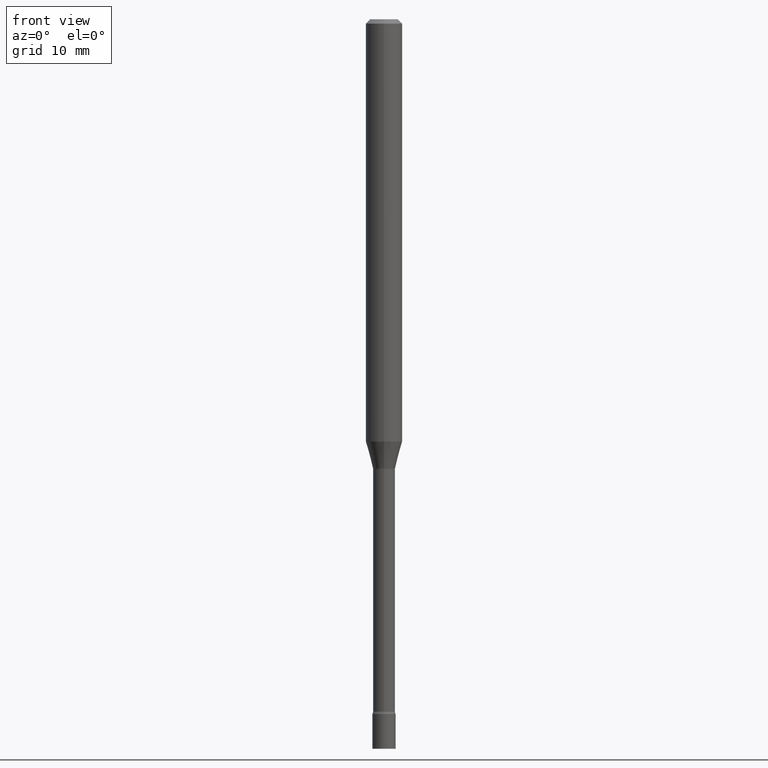
[diagram: clean part render]
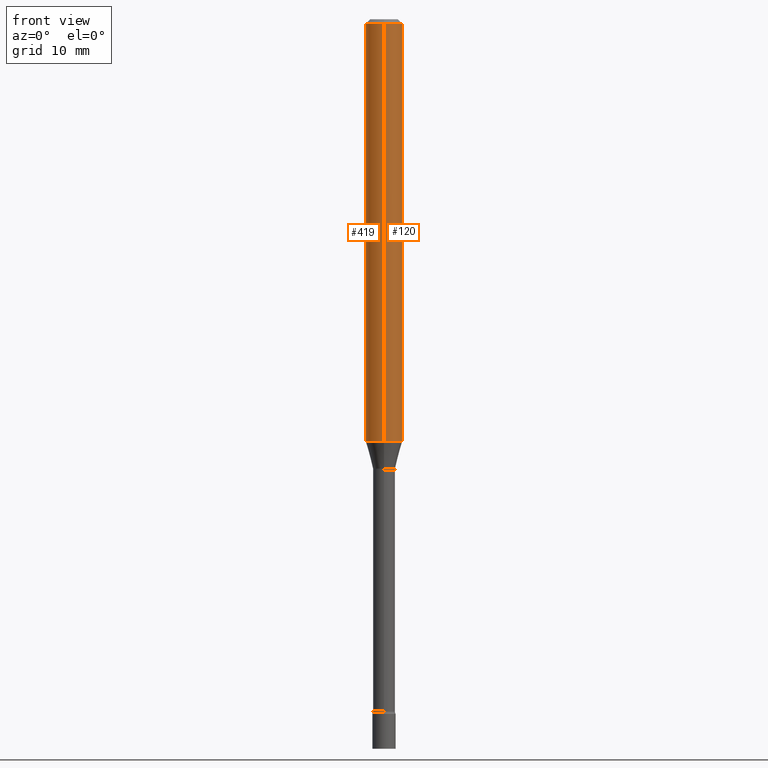
[diagram: same view with one multi-face feature highlighted, each face labeled with its STEP entity id]
A machine part, front view. The highlighted faces form ONE feature: a constant-radius fillet chain: 2 tangent blend faces with common blend radius 1.5875 mm. The faces share edges in the B-rep.
Their STEP definitions:
[1] entity #419 (Cylinder):
#7 = VECTOR ( 'NONE', #462, 39.37007874015748143 ) ;
#15 = FACE_OUTER_BOUND ( 'NONE', #128, .T. ) ;
#20 = CYLINDRICAL_SURFACE ( 'NONE', #476, 0.06250000000000000000 ) ;
#22 = CARTESIAN_POINT ( 'NONE',  ( 3.538766591777044932E-29, -5.052428502148717688E-15, -1.447071934891535294 ) ) ;
#27 = VECTOR ( 'NONE', #331, 39.37007874015748143 ) ;
#36 = EDGE_CURVE ( 'NONE', #507, #389, #356, .T. ) ;
#52 = CARTESIAN_POINT ( 'NONE',  ( -4.364351673553912750E-16, -0.06250000000000005551, -0.01499999999999981209 ) ) ;
#55 = CARTESIAN_POINT ( 'NONE',  ( -4.364351673553916201E-16, -0.06250000000000000000, 2.182177497678881900E-16 ) ) ;
#61 = EDGE_CURVE ( 'NONE', #112, #507, #385, .T. ) ;
#73 = AXIS2_PLACEMENT_3D ( 'NONE', #225, #442, #75 ) ;
#75 = DIRECTION ( 'NONE',  ( -6.982962677686265922E-15, -1.000000000000000000, 3.483106191921935554E-15 ) ) ;
#76 = VERTEX_POINT ( 'NONE', #478 ) ;
#99 = DIRECTION ( 'NONE',  ( -6.982962677686265922E-15, -1.000000000000000000, 4.370956789862821150E-15 ) ) ;
#109 = ORIENTED_EDGE ( 'NONE', *, *, #36, .F. ) ;
#112 = VERTEX_POINT ( 'NONE', #146 ) ;
#128 = EDGE_LOOP ( 'NONE', ( #347, #269, #350, #109 ) ) ;
#146 = CARTESIAN_POINT ( 'NONE',  ( 4.440892098500976219E-16, 0.06249999999999491379, -1.447071934891535516 ) ) ;
#166 = LINE ( 'NONE', #55, #27 ) ;
#170 = DIRECTION ( 'NONE',  ( -2.445466950502562132E-29, 3.491483996286211040E-15, 1.000000000000000000 ) ) ;
#173 = AXIS2_PLACEMENT_3D ( 'NONE', #22, #170, #99 ) ;
#199 = CARTESIAN_POINT ( 'NONE',  ( 0.000000000000000000, 0.000000000000000000, 0.000000000000000000 ) ) ;
#216 = EDGE_CURVE ( 'NONE', #112, #76, #357, .T. ) ;
#225 = CARTESIAN_POINT ( 'NONE',  ( 3.668200425753850712E-31, -5.237225994429327531E-17, -0.01500000000000003067 ) ) ;
#262 = CARTESIAN_POINT ( 'NONE',  ( 4.440892098500982135E-16, 0.06249999999999995143, -0.01500000000000024751 ) ) ;
#269 = ORIENTED_EDGE ( 'NONE', *, *, #216, .T. ) ;
#309 = CARTESIAN_POINT ( 'NONE',  ( 4.440892098500625669E-16, 0.06250000000000000000, -2.182177497678881900E-16 ) ) ;
#331 = DIRECTION ( 'NONE',  ( -2.445466950502561851E-29, 3.491483996286211435E-15, 1.000000000000000000 ) ) ;
#347 = ORIENTED_EDGE ( 'NONE', *, *, #61, .F. ) ;
#350 = ORIENTED_EDGE ( 'NONE', *, *, #367, .T. ) ;
#356 = CIRCLE ( 'NONE', #73, 0.06250000000000000000 ) ;
#357 = CIRCLE ( 'NONE', #173, 0.06250000000000000000 ) ;
#367 = EDGE_CURVE ( 'NONE', #76, #389, #166, .T. ) ;
#381 = DIRECTION ( 'NONE',  ( -6.982962677686265922E-15, -1.000000000000000000, 3.491483996286211040E-15 ) ) ;
#385 = LINE ( 'NONE', #309, #7 ) ;
#389 = VERTEX_POINT ( 'NONE', #52 ) ;
#408 = DIRECTION ( 'NONE',  ( -2.445466950502562132E-29, 3.491483996286211040E-15, 1.000000000000000000 ) ) ;
#419 = ADVANCED_FACE ( 'NONE', ( #15 ), #20, .T. ) ;
#442 = DIRECTION ( 'NONE',  ( -2.445466950502562132E-29, 3.491483996286211040E-15, 1.000000000000000000 ) ) ;
#462 = DIRECTION ( 'NONE',  ( -2.445466950502561851E-29, 3.491483996286211435E-15, 1.000000000000000000 ) ) ;
#476 = AXIS2_PLACEMENT_3D ( 'NONE', #199, #408, #381 ) ;
#478 = CARTESIAN_POINT ( 'NONE',  ( -4.364351673553565651E-16, -0.06250000000000509315, -1.447071934891535072 ) ) ;
#507 = VERTEX_POINT ( 'NONE', #262 ) ;
[2] entity #120 (Cylinder):
#7 = VECTOR ( 'NONE', #462, 39.37007874015748143 ) ;
#18 = CARTESIAN_POINT ( 'NONE',  ( 3.668200425753850712E-31, -5.237225994429327531E-17, -0.01500000000000003067 ) ) ;
#27 = VECTOR ( 'NONE', #331, 39.37007874015748143 ) ;
#45 = CARTESIAN_POINT ( 'NONE',  ( 3.538766591777044932E-29, -5.052428502148717688E-15, -1.447071934891535294 ) ) ;
#52 = CARTESIAN_POINT ( 'NONE',  ( -4.364351673553912750E-16, -0.06250000000000005551, -0.01499999999999981209 ) ) ;
#55 = CARTESIAN_POINT ( 'NONE',  ( -4.364351673553916201E-16, -0.06250000000000000000, 2.182177497678881900E-16 ) ) ;
#61 = EDGE_CURVE ( 'NONE', #112, #507, #385, .T. ) ;
#76 = VERTEX_POINT ( 'NONE', #478 ) ;
#103 = AXIS2_PLACEMENT_3D ( 'NONE', #45, #494, #246 ) ;
#112 = VERTEX_POINT ( 'NONE', #146 ) ;
#120 = ADVANCED_FACE ( 'NONE', ( #217 ), #139, .T. ) ;
#135 = EDGE_LOOP ( 'NONE', ( #277, #299, #444, #261 ) ) ;
#139 = CYLINDRICAL_SURFACE ( 'NONE', #281, 0.06250000000000000000 ) ;
#146 = CARTESIAN_POINT ( 'NONE',  ( 4.440892098500976219E-16, 0.06249999999999491379, -1.447071934891535516 ) ) ;
#166 = LINE ( 'NONE', #55, #27 ) ;
#208 = DIRECTION ( 'NONE',  ( -6.982962677686265922E-15, -1.000000000000000000, 3.483106191921935554E-15 ) ) ;
#217 = FACE_OUTER_BOUND ( 'NONE', #135, .T. ) ;
#236 = CIRCLE ( 'NONE', #103, 0.06250000000000000000 ) ;
#246 = DIRECTION ( 'NONE',  ( -6.982962677686265922E-15, -1.000000000000000000, 4.370956789862821150E-15 ) ) ;
#261 = ORIENTED_EDGE ( 'NONE', *, *, #367, .F. ) ;
#262 = CARTESIAN_POINT ( 'NONE',  ( 4.440892098500982135E-16, 0.06249999999999995143, -0.01500000000000024751 ) ) ;
#277 = ORIENTED_EDGE ( 'NONE', *, *, #401, .T. ) ;
#281 = AXIS2_PLACEMENT_3D ( 'NONE', #392, #322, #348 ) ;
#299 = ORIENTED_EDGE ( 'NONE', *, *, #61, .T. ) ;
#309 = CARTESIAN_POINT ( 'NONE',  ( 4.440892098500625669E-16, 0.06250000000000000000, -2.182177497678881900E-16 ) ) ;
#322 = DIRECTION ( 'NONE',  ( -2.445466950502562132E-29, 3.491483996286211040E-15, 1.000000000000000000 ) ) ;
#331 = DIRECTION ( 'NONE',  ( -2.445466950502561851E-29, 3.491483996286211435E-15, 1.000000000000000000 ) ) ;
#348 = DIRECTION ( 'NONE',  ( -6.982962677686265922E-15, -1.000000000000000000, 3.491483996286211040E-15 ) ) ;
#363 = EDGE_CURVE ( 'NONE', #389, #507, #446, .T. ) ;
#367 = EDGE_CURVE ( 'NONE', #76, #389, #166, .T. ) ;
#385 = LINE ( 'NONE', #309, #7 ) ;
#389 = VERTEX_POINT ( 'NONE', #52 ) ;
#392 = CARTESIAN_POINT ( 'NONE',  ( 0.000000000000000000, 0.000000000000000000, 0.000000000000000000 ) ) ;
#401 = EDGE_CURVE ( 'NONE', #76, #112, #236, .T. ) ;
#403 = AXIS2_PLACEMENT_3D ( 'NONE', #18, #464, #208 ) ;
#444 = ORIENTED_EDGE ( 'NONE', *, *, #363, .F. ) ;
#446 = CIRCLE ( 'NONE', #403, 0.06250000000000000000 ) ;
#462 = DIRECTION ( 'NONE',  ( -2.445466950502561851E-29, 3.491483996286211435E-15, 1.000000000000000000 ) ) ;
#464 = DIRECTION ( 'NONE',  ( -2.445466950502562132E-29, 3.491483996286211040E-15, 1.000000000000000000 ) ) ;
#478 = CARTESIAN_POINT ( 'NONE',  ( -4.364351673553565651E-16, -0.06250000000000509315, -1.447071934891535072 ) ) ;
#494 = DIRECTION ( 'NONE',  ( -2.445466950502562132E-29, 3.491483996286211040E-15, 1.000000000000000000 ) ) ;
#507 = VERTEX_POINT ( 'NONE', #262 ) ;